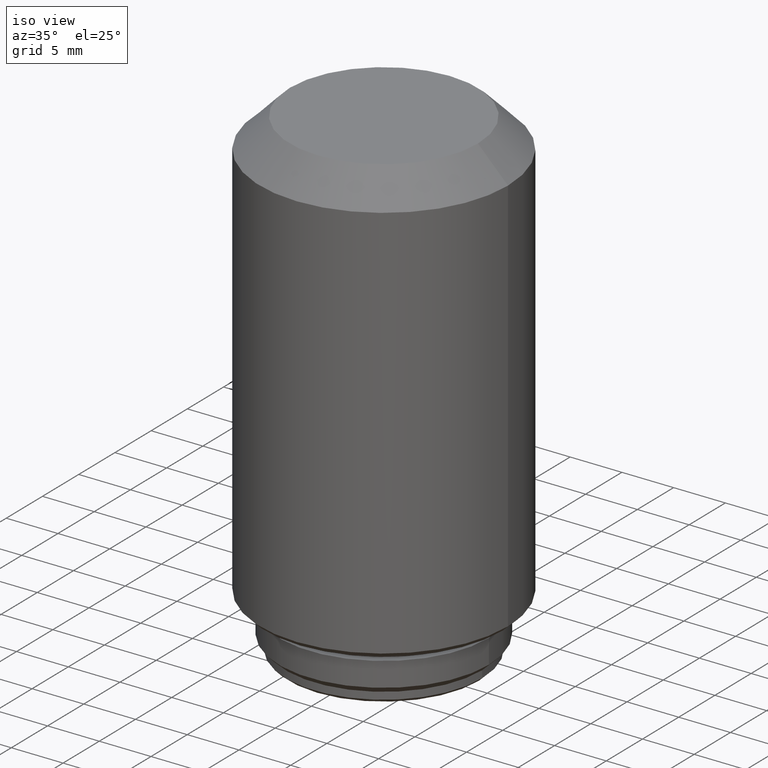
[diagram: clean part render]
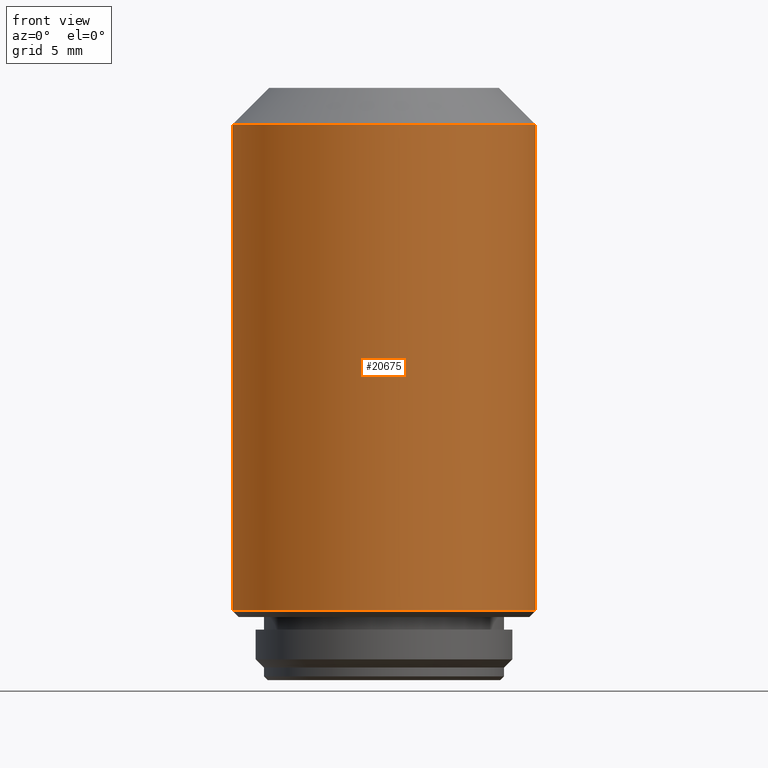
[diagram: tour spotlight — one face highlighted and labeled with its STEP entity id]
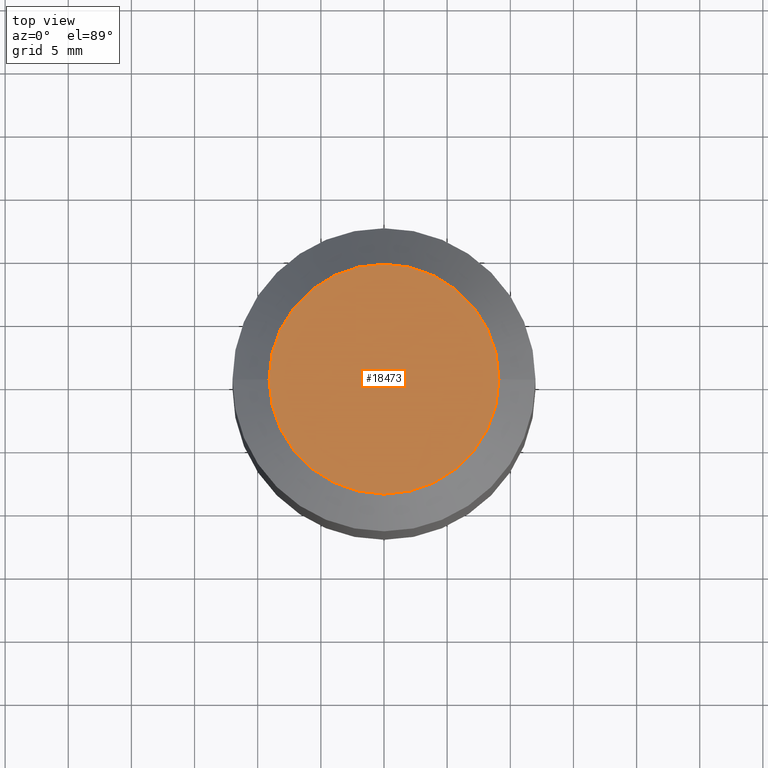
[diagram: tour spotlight — one face highlighted and labeled with its STEP entity id]
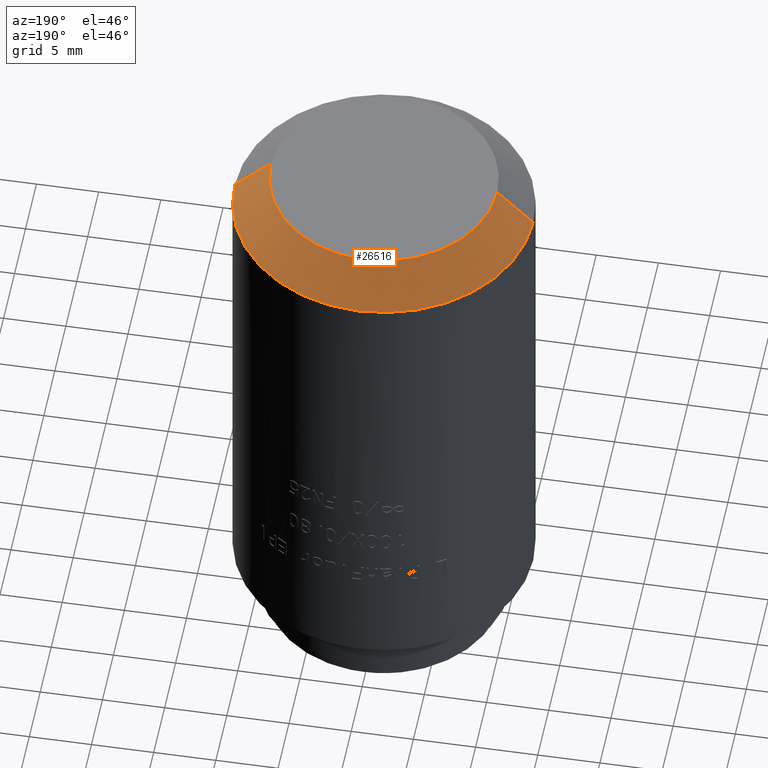
[diagram: tour spotlight — one face highlighted and labeled with its STEP entity id]
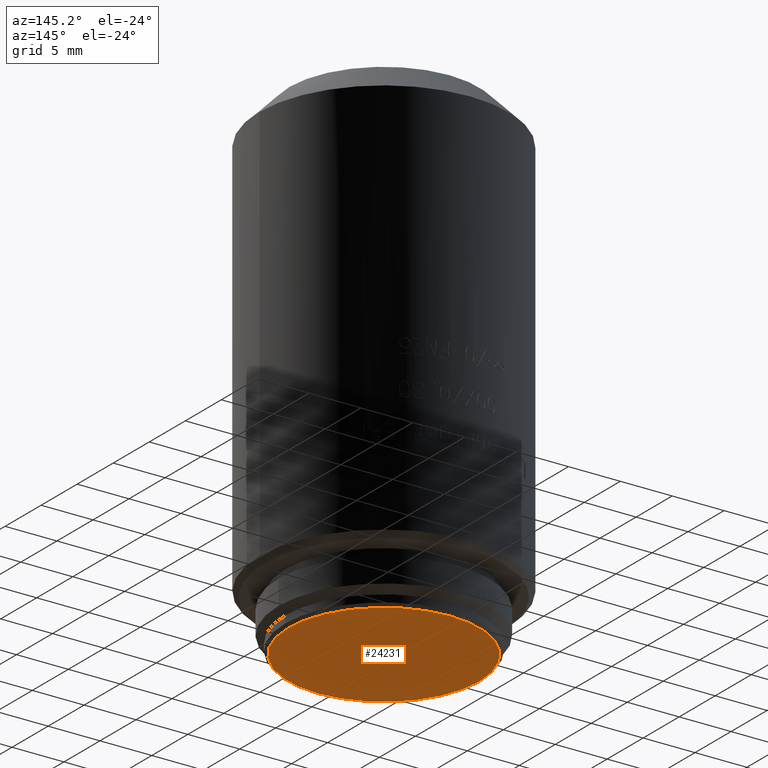
[diagram: tour spotlight — one face highlighted and labeled with its STEP entity id]
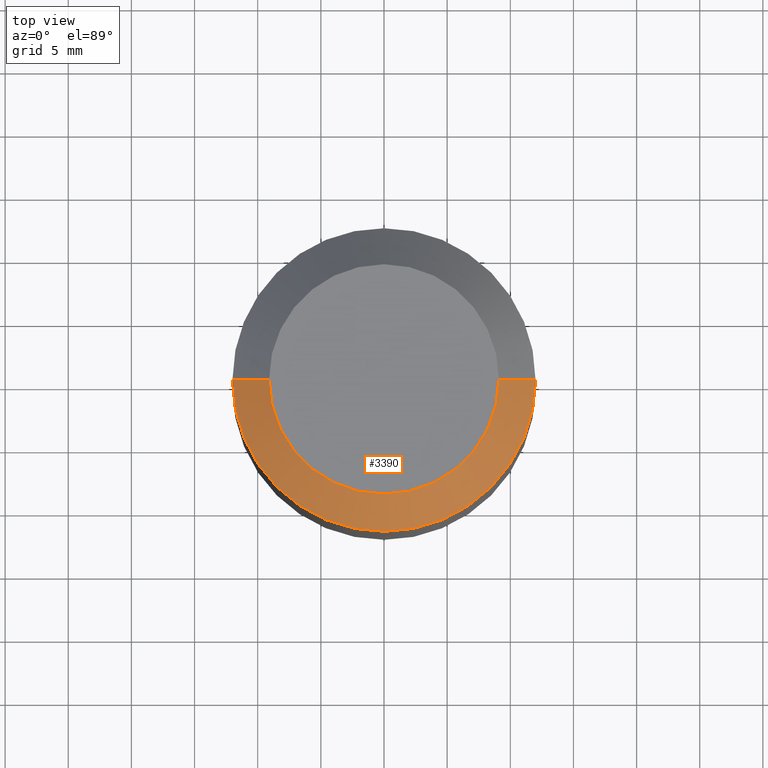
[diagram: tour spotlight — one face highlighted and labeled with its STEP entity id]
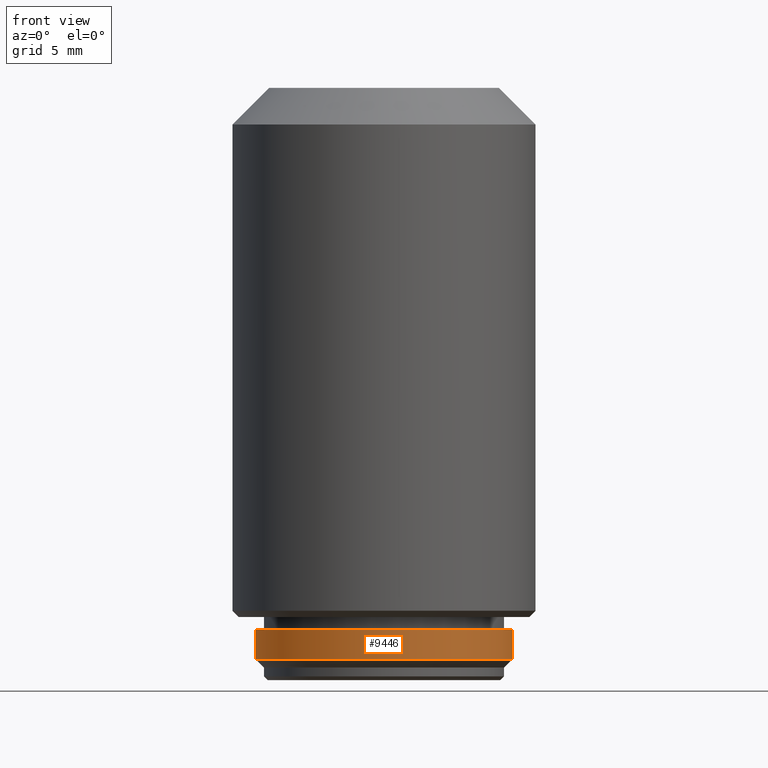
[diagram: tour spotlight — one face highlighted and labeled with its STEP entity id]
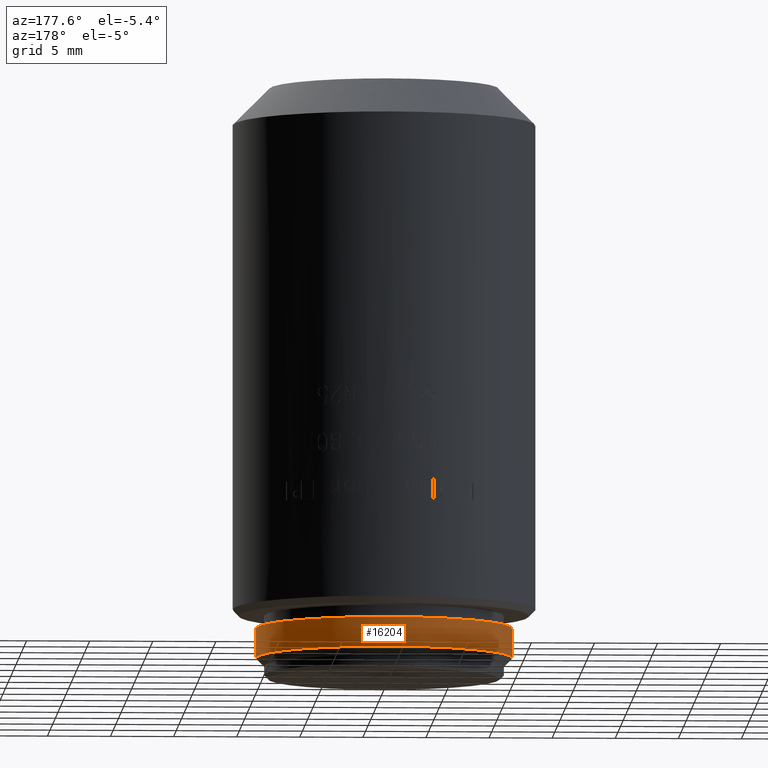
[diagram: tour spotlight — one face highlighted and labeled with its STEP entity id]
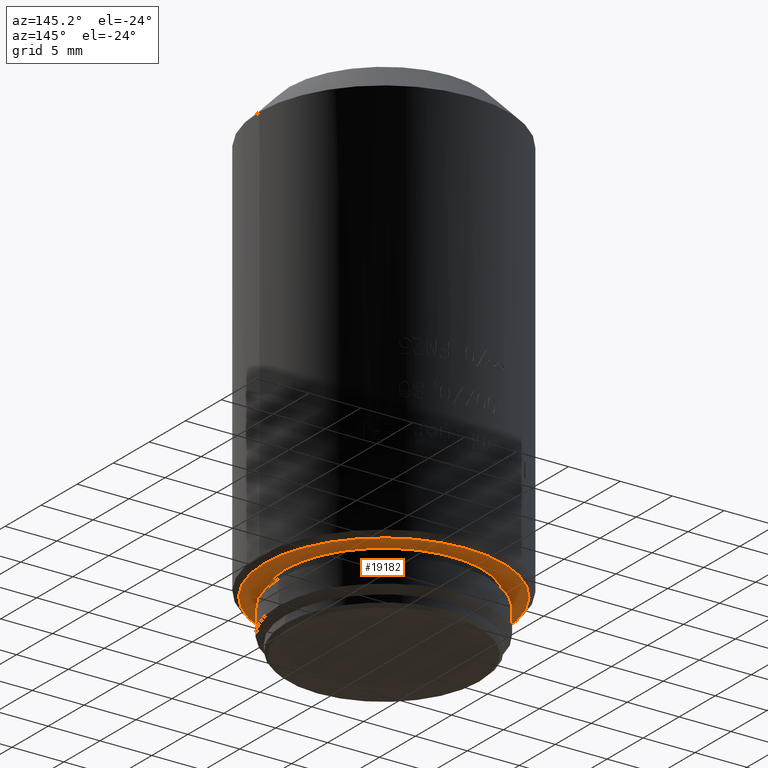
[diagram: tour spotlight — one face highlighted and labeled with its STEP entity id]
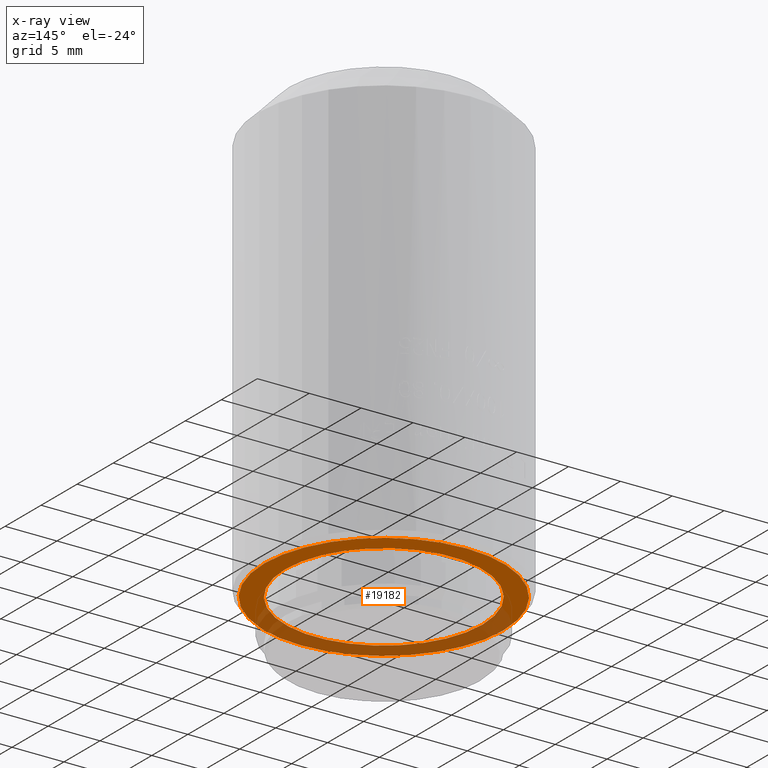
[diagram: x-ray of the same camera — body ghosted, this tour face saturated]
A machine part: a face-by-face anatomy tour. The part has 309 B-rep faces; the first image is the clean iso view, then the 8 largest visible faces are spotlighted one at a time (largest first), each with its STEP entity span.

Face 1 — front view, entity #20675. In plain terms, the highlighted cylindrical surface (partial cylindrical patch) has radius 12 mm, axis along (0, 0, -1).
Definition (entity closure, byte-faithful):
#188 = CYLINDRICAL_SURFACE ( 'NONE', #24854, 12.00000000000000000 ) ;
#848 = ORIENTED_EDGE ( 'NONE', *, *, #4191, .T. ) ;
#4181 = DIRECTION ( 'NONE',  ( 0.000000000000000000, 0.000000000000000000, -1.000000000000000000 ) ) ;
#4191 = EDGE_CURVE ( 'NONE', #9660, #15253, #15241, .T. ) ;
#5192 = VERTEX_POINT ( 'NONE', #12402 ) ;
#5768 = EDGE_CURVE ( 'NONE', #15253, #14628, #13104, .T. ) ;
#6119 = DIRECTION ( 'NONE',  ( 0.000000000000000000, 0.000000000000000000, 1.000000000000000000 ) ) ;
#6389 = DIRECTION ( 'NONE',  ( 0.000000000000000000, 0.000000000000000000, -1.000000000000000000 ) ) ;
#6608 = EDGE_CURVE ( 'NONE', #5192, #14628, #22871, .T. ) ;
#6789 = DIRECTION ( 'NONE',  ( -1.000000000000000000, 0.000000000000000000, 0.000000000000000000 ) ) ;
#8286 = ORIENTED_EDGE ( 'NONE', *, *, #5768, .T. ) ;
#8736 = CARTESIAN_POINT ( 'NONE',  ( 12.00000000000000000, 1.469576158976823947E-15, 46.89999999999999858 ) ) ;
#8797 = EDGE_CURVE ( 'NONE', #5192, #9660, #22298, .T. ) ;
#9660 = VERTEX_POINT ( 'NONE', #15630 ) ;
#10420 = FACE_OUTER_BOUND ( 'NONE', #18773, .T. ) ;
#10947 = VECTOR ( 'NONE', #21300, 1000.000000000000000 ) ;
#12302 = DIRECTION ( 'NONE',  ( -1.000000000000000000, 0.000000000000000000, 0.000000000000000000 ) ) ;
#12402 = CARTESIAN_POINT ( 'NONE',  ( 11.99999999999998757, 1.469576158976822369E-15, 44.00000000000000000 ) ) ;
#12846 = AXIS2_PLACEMENT_3D ( 'NONE', #18970, #19101, #12911 ) ;
#12911 = DIRECTION ( 'NONE',  ( 1.000000000000000000, 0.000000000000000000, 0.000000000000000000 ) ) ;
#13104 = CIRCLE ( 'NONE', #25946, 12.00000000000000000 ) ;
#14265 = CARTESIAN_POINT ( 'NONE',  ( -11.99999999999999822, 1.469576158976823750E-15, 5.500000000000000000 ) ) ;
#14628 = VERTEX_POINT ( 'NONE', #23132 ) ;
#15241 = LINE ( 'NONE', #19279, #10947 ) ;
#15253 = VERTEX_POINT ( 'NONE', #14265 ) ;
#15630 = CARTESIAN_POINT ( 'NONE',  ( -11.99999999999998757, 0.000000000000000000, 44.00000000000000000 ) ) ;
#16604 = CARTESIAN_POINT ( 'NONE',  ( 0.000000000000000000, 0.000000000000000000, 46.89999999999999858 ) ) ;
#17957 = CARTESIAN_POINT ( 'NONE',  ( 0.000000000000000000, 0.000000000000000000, 5.500000000000000000 ) ) ;
#18773 = EDGE_LOOP ( 'NONE', ( #19729, #19290, #848, #8286 ) ) ;
#18970 = CARTESIAN_POINT ( 'NONE',  ( 0.000000000000000000, 0.000000000000000000, 44.00000000000000000 ) ) ;
#19101 = DIRECTION ( 'NONE',  ( 0.000000000000000000, 0.000000000000000000, -1.000000000000000000 ) ) ;
#19279 = CARTESIAN_POINT ( 'NONE',  ( -12.00000000000000000, 0.000000000000000000, 46.89999999999999858 ) ) ;
#19290 = ORIENTED_EDGE ( 'NONE', *, *, #8797, .T. ) ;
#19729 = ORIENTED_EDGE ( 'NONE', *, *, #6608, .F. ) ;
#20675 = ADVANCED_FACE ( 'NONE', ( #10420 ), #188, .T. ) ;
#21300 = DIRECTION ( 'NONE',  ( 0.000000000000000000, 0.000000000000000000, -1.000000000000000000 ) ) ;
#22298 = CIRCLE ( 'NONE', #12846, 12.00000000000000000 ) ;
#22871 = LINE ( 'NONE', #8736, #23796 ) ;
#23132 = CARTESIAN_POINT ( 'NONE',  ( 11.99999999999999822, 0.000000000000000000, 5.500000000000000000 ) ) ;
#23796 = VECTOR ( 'NONE', #4181, 1000.000000000000000 ) ;
#24854 = AXIS2_PLACEMENT_3D ( 'NONE', #16604, #6389, #6789 ) ;
#25946 = AXIS2_PLACEMENT_3D ( 'NONE', #17957, #6119, #12302 ) ;

Face 2 — top view, entity #18473. In plain terms, the highlighted planar face has unit normal (0, 0, 1).
Definition (entity closure, byte-faithful):
#1606 = AXIS2_PLACEMENT_3D ( 'NONE', #26597, #14212, #20545 ) ;
#5035 = DIRECTION ( 'NONE',  ( 0.000000000000000000, 0.000000000000000000, 1.000000000000000000 ) ) ;
#7358 = VERTEX_POINT ( 'NONE', #10578 ) ;
#9824 = CIRCLE ( 'NONE', #13683, 9.099999999999999645 ) ;
#10578 = CARTESIAN_POINT ( 'NONE',  ( -9.099999999999999645, 0.000000000000000000, 46.89999999999999858 ) ) ;
#11191 = ORIENTED_EDGE ( 'NONE', *, *, #21459, .T. ) ;
#13505 = ORIENTED_EDGE ( 'NONE', *, *, #20147, .T. ) ;
#13683 = AXIS2_PLACEMENT_3D ( 'NONE', #22431, #20414, #14618 ) ;
#14212 = DIRECTION ( 'NONE',  ( 0.000000000000000000, 0.000000000000000000, 1.000000000000000000 ) ) ;
#14612 = FACE_OUTER_BOUND ( 'NONE', #15414, .T. ) ;
#14618 = DIRECTION ( 'NONE',  ( 1.000000000000000000, 0.000000000000000000, 0.000000000000000000 ) ) ;
#14930 = VERTEX_POINT ( 'NONE', #21355 ) ;
#15414 = EDGE_LOOP ( 'NONE', ( #13505, #11191 ) ) ;
#18380 = PLANE ( 'NONE',  #1606 ) ;
#18473 = ADVANCED_FACE ( 'NONE', ( #14612 ), #18380, .T. ) ;
#20147 = EDGE_CURVE ( 'NONE', #7358, #14930, #26559, .T. ) ;
#20414 = DIRECTION ( 'NONE',  ( 0.000000000000000000, 0.000000000000000000, 1.000000000000000000 ) ) ;
#20545 = DIRECTION ( 'NONE',  ( 1.000000000000000000, 0.000000000000000000, 0.000000000000000000 ) ) ;
#20551 = AXIS2_PLACEMENT_3D ( 'NONE', #21310, #5035, #21447 ) ;
#21310 = CARTESIAN_POINT ( 'NONE',  ( 0.000000000000000000, 0.000000000000000000, 46.89999999999999858 ) ) ;
#21355 = CARTESIAN_POINT ( 'NONE',  ( 9.099999999999999645, 1.292002373100456720E-15, 46.89999999999999858 ) ) ;
#21447 = DIRECTION ( 'NONE',  ( 1.000000000000000000, 0.000000000000000000, 0.000000000000000000 ) ) ;
#21459 = EDGE_CURVE ( 'NONE', #14930, #7358, #9824, .T. ) ;
#22431 = CARTESIAN_POINT ( 'NONE',  ( 0.000000000000000000, 0.000000000000000000, 46.89999999999999858 ) ) ;
#26559 = CIRCLE ( 'NONE', #20551, 9.099999999999999645 ) ;
#26597 = CARTESIAN_POINT ( 'NONE',  ( 0.000000000000000000, 0.000000000000000000, 46.89999999999999858 ) ) ;

Face 3 — auxiliary view, entity #26516. In plain terms, the highlighted conical surface has half-angle 45 deg.
Definition (entity closure, byte-faithful):
#83 = AXIS2_PLACEMENT_3D ( 'NONE', #22335, #17896, #16137 ) ;
#92 = CARTESIAN_POINT ( 'NONE',  ( 9.099999999999999645, 1.114428587224091465E-15, 46.89999999999999858 ) ) ;
#741 = DIRECTION ( 'NONE',  ( 0.000000000000000000, 0.000000000000000000, -1.000000000000000000 ) ) ;
#1484 = AXIS2_PLACEMENT_3D ( 'NONE', #19173, #741, #6036 ) ;
#3672 = EDGE_CURVE ( 'NONE', #9660, #5192, #16525, .T. ) ;
#4627 = ORIENTED_EDGE ( 'NONE', *, *, #7128, .F. ) ;
#5192 = VERTEX_POINT ( 'NONE', #12402 ) ;
#5784 = FACE_OUTER_BOUND ( 'NONE', #10645, .T. ) ;
#6036 = DIRECTION ( 'NONE',  ( 1.000000000000000000, 0.000000000000000000, 0.000000000000000000 ) ) ;
#7128 = EDGE_CURVE ( 'NONE', #7358, #9660, #13403, .T. ) ;
#7358 = VERTEX_POINT ( 'NONE', #10578 ) ;
#8129 = EDGE_CURVE ( 'NONE', #14930, #5192, #18521, .T. ) ;
#8634 = VECTOR ( 'NONE', #12870, 1000.000000000000114 ) ;
#9660 = VERTEX_POINT ( 'NONE', #15630 ) ;
#9707 = ORIENTED_EDGE ( 'NONE', *, *, #21459, .F. ) ;
#9824 = CIRCLE ( 'NONE', #13683, 9.099999999999999645 ) ;
#10047 = DIRECTION ( 'NONE',  ( 0.7071067811865460184, 8.659560562354913137E-17, -0.7071067811865489050 ) ) ;
#10578 = CARTESIAN_POINT ( 'NONE',  ( -9.099999999999999645, 0.000000000000000000, 46.89999999999999858 ) ) ;
#10645 = EDGE_LOOP ( 'NONE', ( #9707, #11848, #22903, #4627 ) ) ;
#11848 = ORIENTED_EDGE ( 'NONE', *, *, #8129, .T. ) ;
#12402 = CARTESIAN_POINT ( 'NONE',  ( 11.99999999999998757, 1.469576158976822369E-15, 44.00000000000000000 ) ) ;
#12870 = DIRECTION ( 'NONE',  ( -0.7071067811865460184, 0.000000000000000000, -0.7071067811865489050 ) ) ;
#13276 = CARTESIAN_POINT ( 'NONE',  ( -9.099999999999999645, 0.000000000000000000, 46.89999999999999858 ) ) ;
#13403 = LINE ( 'NONE', #13276, #8634 ) ;
#13683 = AXIS2_PLACEMENT_3D ( 'NONE', #22431, #20414, #14618 ) ;
#14618 = DIRECTION ( 'NONE',  ( 1.000000000000000000, 0.000000000000000000, 0.000000000000000000 ) ) ;
#14930 = VERTEX_POINT ( 'NONE', #21355 ) ;
#15630 = CARTESIAN_POINT ( 'NONE',  ( -11.99999999999998757, 0.000000000000000000, 44.00000000000000000 ) ) ;
#16137 = DIRECTION ( 'NONE',  ( -1.000000000000000000, 0.000000000000000000, 0.000000000000000000 ) ) ;
#16525 = CIRCLE ( 'NONE', #1484, 12.00000000000000000 ) ;
#17278 = CONICAL_SURFACE ( 'NONE', #83, 9.099999999999999645, 0.7853981633974461696 ) ;
#17896 = DIRECTION ( 'NONE',  ( 0.000000000000000000, 0.000000000000000000, -1.000000000000000000 ) ) ;
#18521 = LINE ( 'NONE', #92, #21022 ) ;
#19173 = CARTESIAN_POINT ( 'NONE',  ( 0.000000000000000000, 0.000000000000000000, 44.00000000000000000 ) ) ;
#20414 = DIRECTION ( 'NONE',  ( 0.000000000000000000, 0.000000000000000000, 1.000000000000000000 ) ) ;
#21022 = VECTOR ( 'NONE', #10047, 1000.000000000000114 ) ;
#21355 = CARTESIAN_POINT ( 'NONE',  ( 9.099999999999999645, 1.292002373100456720E-15, 46.89999999999999858 ) ) ;
#21459 = EDGE_CURVE ( 'NONE', #14930, #7358, #9824, .T. ) ;
#22335 = CARTESIAN_POINT ( 'NONE',  ( 0.000000000000000000, 0.000000000000000000, 46.89999999999999858 ) ) ;
#22431 = CARTESIAN_POINT ( 'NONE',  ( 0.000000000000000000, 0.000000000000000000, 46.89999999999999858 ) ) ;
#22903 = ORIENTED_EDGE ( 'NONE', *, *, #3672, .F. ) ;
#26516 = ADVANCED_FACE ( 'NONE', ( #5784 ), #17278, .T. ) ;

Face 4 — auxiliary view, entity #24231. In plain terms, the highlighted planar face has unit normal (0, 0, 1).
Definition (entity closure, byte-faithful):
#24 = DIRECTION ( 'NONE',  ( 1.000000000000000000, 0.000000000000000000, 0.000000000000000000 ) ) ;
#2150 = CARTESIAN_POINT ( 'NONE',  ( -9.199999999999999289, 1.145044757202775252E-15, 0.000000000000000000 ) ) ;
#4522 = EDGE_LOOP ( 'NONE', ( #17527, #17424 ) ) ;
#5225 = EDGE_CURVE ( 'NONE', #15130, #16281, #19116, .T. ) ;
#5272 = CARTESIAN_POINT ( 'NONE',  ( 0.000000000000000000, 0.000000000000000000, 0.000000000000000000 ) ) ;
#6750 = CIRCLE ( 'NONE', #21775, 9.199999999999999289 ) ;
#10957 = AXIS2_PLACEMENT_3D ( 'NONE', #17078, #15058, #24 ) ;
#11192 = DIRECTION ( 'NONE',  ( 1.000000000000000000, 0.000000000000000000, 0.000000000000000000 ) ) ;
#12380 = CARTESIAN_POINT ( 'NONE',  ( 9.199999999999999289, 0.000000000000000000, 0.000000000000000000 ) ) ;
#12614 = DIRECTION ( 'NONE',  ( 1.000000000000000000, 0.000000000000000000, 0.000000000000000000 ) ) ;
#13340 = FACE_OUTER_BOUND ( 'NONE', #4522, .T. ) ;
#14004 = AXIS2_PLACEMENT_3D ( 'NONE', #5272, #17640, #11192 ) ;
#15058 = DIRECTION ( 'NONE',  ( 0.000000000000000000, 0.000000000000000000, -1.000000000000000000 ) ) ;
#15130 = VERTEX_POINT ( 'NONE', #12380 ) ;
#16281 = VERTEX_POINT ( 'NONE', #2150 ) ;
#17078 = CARTESIAN_POINT ( 'NONE',  ( 0.000000000000000000, 0.000000000000000000, 0.000000000000000000 ) ) ;
#17424 = ORIENTED_EDGE ( 'NONE', *, *, #25116, .T. ) ;
#17527 = ORIENTED_EDGE ( 'NONE', *, *, #5225, .T. ) ;
#17640 = DIRECTION ( 'NONE',  ( 0.000000000000000000, 0.000000000000000000, 1.000000000000000000 ) ) ;
#19116 = CIRCLE ( 'NONE', #10957, 9.199999999999999289 ) ;
#20963 = CARTESIAN_POINT ( 'NONE',  ( 0.000000000000000000, 0.000000000000000000, 0.000000000000000000 ) ) ;
#21680 = PLANE ( 'NONE',  #14004 ) ;
#21775 = AXIS2_PLACEMENT_3D ( 'NONE', #20963, #22973, #12614 ) ;
#22973 = DIRECTION ( 'NONE',  ( 0.000000000000000000, 0.000000000000000000, -1.000000000000000000 ) ) ;
#24231 = ADVANCED_FACE ( 'NONE', ( #13340 ), #21680, .F. ) ;
#25116 = EDGE_CURVE ( 'NONE', #16281, #15130, #6750, .T. ) ;

Face 5 — top view, entity #3390. In plain terms, the highlighted conical surface has half-angle 45 deg.
Definition (entity closure, byte-faithful):
#92 = CARTESIAN_POINT ( 'NONE',  ( 9.099999999999999645, 1.114428587224091465E-15, 46.89999999999999858 ) ) ;
#1469 = ORIENTED_EDGE ( 'NONE', *, *, #8797, .F. ) ;
#3168 = ORIENTED_EDGE ( 'NONE', *, *, #20147, .F. ) ;
#3390 = ADVANCED_FACE ( 'NONE', ( #12522 ), #24258, .T. ) ;
#3668 = ORIENTED_EDGE ( 'NONE', *, *, #8129, .F. ) ;
#5035 = DIRECTION ( 'NONE',  ( 0.000000000000000000, 0.000000000000000000, 1.000000000000000000 ) ) ;
#5192 = VERTEX_POINT ( 'NONE', #12402 ) ;
#7128 = EDGE_CURVE ( 'NONE', #7358, #9660, #13403, .T. ) ;
#7358 = VERTEX_POINT ( 'NONE', #10578 ) ;
#8129 = EDGE_CURVE ( 'NONE', #14930, #5192, #18521, .T. ) ;
#8634 = VECTOR ( 'NONE', #12870, 1000.000000000000114 ) ;
#8797 = EDGE_CURVE ( 'NONE', #5192, #9660, #22298, .T. ) ;
#9074 = EDGE_LOOP ( 'NONE', ( #3668, #3168, #14994, #1469 ) ) ;
#9645 = AXIS2_PLACEMENT_3D ( 'NONE', #14667, #21001, #10501 ) ;
#9660 = VERTEX_POINT ( 'NONE', #15630 ) ;
#10047 = DIRECTION ( 'NONE',  ( 0.7071067811865460184, 8.659560562354913137E-17, -0.7071067811865489050 ) ) ;
#10501 = DIRECTION ( 'NONE',  ( -1.000000000000000000, 0.000000000000000000, 0.000000000000000000 ) ) ;
#10578 = CARTESIAN_POINT ( 'NONE',  ( -9.099999999999999645, 0.000000000000000000, 46.89999999999999858 ) ) ;
#12402 = CARTESIAN_POINT ( 'NONE',  ( 11.99999999999998757, 1.469576158976822369E-15, 44.00000000000000000 ) ) ;
#12522 = FACE_OUTER_BOUND ( 'NONE', #9074, .T. ) ;
#12846 = AXIS2_PLACEMENT_3D ( 'NONE', #18970, #19101, #12911 ) ;
#12870 = DIRECTION ( 'NONE',  ( -0.7071067811865460184, 0.000000000000000000, -0.7071067811865489050 ) ) ;
#12911 = DIRECTION ( 'NONE',  ( 1.000000000000000000, 0.000000000000000000, 0.000000000000000000 ) ) ;
#13276 = CARTESIAN_POINT ( 'NONE',  ( -9.099999999999999645, 0.000000000000000000, 46.89999999999999858 ) ) ;
#13403 = LINE ( 'NONE', #13276, #8634 ) ;
#14667 = CARTESIAN_POINT ( 'NONE',  ( 0.000000000000000000, 0.000000000000000000, 46.89999999999999858 ) ) ;
#14930 = VERTEX_POINT ( 'NONE', #21355 ) ;
#14994 = ORIENTED_EDGE ( 'NONE', *, *, #7128, .T. ) ;
#15630 = CARTESIAN_POINT ( 'NONE',  ( -11.99999999999998757, 0.000000000000000000, 44.00000000000000000 ) ) ;
#18521 = LINE ( 'NONE', #92, #21022 ) ;
#18970 = CARTESIAN_POINT ( 'NONE',  ( 0.000000000000000000, 0.000000000000000000, 44.00000000000000000 ) ) ;
#19101 = DIRECTION ( 'NONE',  ( 0.000000000000000000, 0.000000000000000000, -1.000000000000000000 ) ) ;
#20147 = EDGE_CURVE ( 'NONE', #7358, #14930, #26559, .T. ) ;
#20551 = AXIS2_PLACEMENT_3D ( 'NONE', #21310, #5035, #21447 ) ;
#21001 = DIRECTION ( 'NONE',  ( 0.000000000000000000, 0.000000000000000000, -1.000000000000000000 ) ) ;
#21022 = VECTOR ( 'NONE', #10047, 1000.000000000000114 ) ;
#21310 = CARTESIAN_POINT ( 'NONE',  ( 0.000000000000000000, 0.000000000000000000, 46.89999999999999858 ) ) ;
#21355 = CARTESIAN_POINT ( 'NONE',  ( 9.099999999999999645, 1.292002373100456720E-15, 46.89999999999999858 ) ) ;
#21447 = DIRECTION ( 'NONE',  ( 1.000000000000000000, 0.000000000000000000, 0.000000000000000000 ) ) ;
#22298 = CIRCLE ( 'NONE', #12846, 12.00000000000000000 ) ;
#24258 = CONICAL_SURFACE ( 'NONE', #9645, 9.099999999999999645, 0.7853981633974461696 ) ;
#26559 = CIRCLE ( 'NONE', #20551, 9.099999999999999645 ) ;

Face 6 — front view, entity #9446. In plain terms, the highlighted cylindrical surface (partial cylindrical patch) has radius 10.16 mm, axis along (0, 0, -1).
Definition (entity closure, byte-faithful):
#1402 = VERTEX_POINT ( 'NONE', #2707 ) ;
#1866 = EDGE_CURVE ( 'NONE', #1402, #21598, #18378, .T. ) ;
#2628 = CARTESIAN_POINT ( 'NONE',  ( 10.16000000000000014, 1.244241147933710864E-15, 5.000000000000000000 ) ) ;
#2707 = CARTESIAN_POINT ( 'NONE',  ( -10.16000000000000014, 0.000000000000000000, 4.000000000000000000 ) ) ;
#3576 = EDGE_CURVE ( 'NONE', #24187, #4125, #6803, .T. ) ;
#3727 = DIRECTION ( 'NONE',  ( 0.000000000000000000, 0.000000000000000000, 1.000000000000000000 ) ) ;
#4125 = VERTEX_POINT ( 'NONE', #19537 ) ;
#4628 = ORIENTED_EDGE ( 'NONE', *, *, #18360, .T. ) ;
#4822 = CARTESIAN_POINT ( 'NONE',  ( 0.000000000000000000, 0.000000000000000000, 4.000000000000000000 ) ) ;
#4936 = VECTOR ( 'NONE', #21196, 1000.000000000000000 ) ;
#6803 = LINE ( 'NONE', #2628, #4936 ) ;
#7836 = CARTESIAN_POINT ( 'NONE',  ( -10.16000000000000014, 1.244241147933710864E-15, 1.649999999999999911 ) ) ;
#8115 = CYLINDRICAL_SURFACE ( 'NONE', #16715, 10.16000000000000014 ) ;
#9446 = ADVANCED_FACE ( 'NONE', ( #22654 ), #8115, .T. ) ;
#10429 = EDGE_CURVE ( 'NONE', #1402, #24187, #16538, .T. ) ;
#10807 = VECTOR ( 'NONE', #18645, 1000.000000000000000 ) ;
#11447 = CARTESIAN_POINT ( 'NONE',  ( 10.16000000000000014, 1.244241147933710864E-15, 4.000000000000000000 ) ) ;
#11925 = DIRECTION ( 'NONE',  ( -1.000000000000000000, 0.000000000000000000, 0.000000000000000000 ) ) ;
#16295 = ORIENTED_EDGE ( 'NONE', *, *, #10429, .F. ) ;
#16320 = DIRECTION ( 'NONE',  ( 0.000000000000000000, 0.000000000000000000, -1.000000000000000000 ) ) ;
#16538 = CIRCLE ( 'NONE', #17817, 10.16000000000000014 ) ;
#16715 = AXIS2_PLACEMENT_3D ( 'NONE', #22911, #16320, #20763 ) ;
#16790 = DIRECTION ( 'NONE',  ( 0.000000000000000000, 0.000000000000000000, 1.000000000000000000 ) ) ;
#17817 = AXIS2_PLACEMENT_3D ( 'NONE', #4822, #16790, #19341 ) ;
#18360 = EDGE_CURVE ( 'NONE', #21598, #4125, #18792, .T. ) ;
#18378 = LINE ( 'NONE', #24845, #10807 ) ;
#18645 = DIRECTION ( 'NONE',  ( 0.000000000000000000, 0.000000000000000000, -1.000000000000000000 ) ) ;
#18792 = CIRCLE ( 'NONE', #24377, 10.16000000000000014 ) ;
#19341 = DIRECTION ( 'NONE',  ( -1.000000000000000000, 0.000000000000000000, 0.000000000000000000 ) ) ;
#19537 = CARTESIAN_POINT ( 'NONE',  ( 10.16000000000000014, 0.000000000000000000, 1.649999999999999911 ) ) ;
#20763 = DIRECTION ( 'NONE',  ( -1.000000000000000000, 0.000000000000000000, 0.000000000000000000 ) ) ;
#20838 = ORIENTED_EDGE ( 'NONE', *, *, #3576, .F. ) ;
#21196 = DIRECTION ( 'NONE',  ( 0.000000000000000000, 0.000000000000000000, -1.000000000000000000 ) ) ;
#21598 = VERTEX_POINT ( 'NONE', #7836 ) ;
#22151 = CARTESIAN_POINT ( 'NONE',  ( 0.000000000000000000, 0.000000000000000000, 1.649999999999999911 ) ) ;
#22654 = FACE_OUTER_BOUND ( 'NONE', #23829, .T. ) ;
#22911 = CARTESIAN_POINT ( 'NONE',  ( 0.000000000000000000, 0.000000000000000000, 5.000000000000000000 ) ) ;
#22920 = ORIENTED_EDGE ( 'NONE', *, *, #1866, .T. ) ;
#23829 = EDGE_LOOP ( 'NONE', ( #20838, #16295, #22920, #4628 ) ) ;
#24187 = VERTEX_POINT ( 'NONE', #11447 ) ;
#24377 = AXIS2_PLACEMENT_3D ( 'NONE', #22151, #3727, #11925 ) ;
#24845 = CARTESIAN_POINT ( 'NONE',  ( -10.16000000000000014, 0.000000000000000000, 5.000000000000000000 ) ) ;

Face 7 — auxiliary view, entity #16204. In plain terms, the highlighted cylindrical surface (partial cylindrical patch) has radius 10.16 mm, axis along (0, 0, -1).
Definition (entity closure, byte-faithful):
#1402 = VERTEX_POINT ( 'NONE', #2707 ) ;
#1531 = EDGE_CURVE ( 'NONE', #24187, #1402, #23753, .T. ) ;
#1866 = EDGE_CURVE ( 'NONE', #1402, #21598, #18378, .T. ) ;
#2628 = CARTESIAN_POINT ( 'NONE',  ( 10.16000000000000014, 1.244241147933710864E-15, 5.000000000000000000 ) ) ;
#2673 = EDGE_LOOP ( 'NONE', ( #3323, #10434, #16596, #15436 ) ) ;
#2707 = CARTESIAN_POINT ( 'NONE',  ( -10.16000000000000014, 0.000000000000000000, 4.000000000000000000 ) ) ;
#3067 = EDGE_CURVE ( 'NONE', #4125, #21598, #15247, .T. ) ;
#3323 = ORIENTED_EDGE ( 'NONE', *, *, #1531, .F. ) ;
#3576 = EDGE_CURVE ( 'NONE', #24187, #4125, #6803, .T. ) ;
#3717 = AXIS2_PLACEMENT_3D ( 'NONE', #6455, #14257, #12100 ) ;
#4125 = VERTEX_POINT ( 'NONE', #19537 ) ;
#4936 = VECTOR ( 'NONE', #21196, 1000.000000000000000 ) ;
#6455 = CARTESIAN_POINT ( 'NONE',  ( 0.000000000000000000, 0.000000000000000000, 5.000000000000000000 ) ) ;
#6803 = LINE ( 'NONE', #2628, #4936 ) ;
#7079 = AXIS2_PLACEMENT_3D ( 'NONE', #19405, #14971, #19535 ) ;
#7836 = CARTESIAN_POINT ( 'NONE',  ( -10.16000000000000014, 1.244241147933710864E-15, 1.649999999999999911 ) ) ;
#8468 = CYLINDRICAL_SURFACE ( 'NONE', #3717, 10.16000000000000014 ) ;
#10434 = ORIENTED_EDGE ( 'NONE', *, *, #3576, .T. ) ;
#10486 = FACE_OUTER_BOUND ( 'NONE', #2673, .T. ) ;
#10807 = VECTOR ( 'NONE', #18645, 1000.000000000000000 ) ;
#11447 = CARTESIAN_POINT ( 'NONE',  ( 10.16000000000000014, 1.244241147933710864E-15, 4.000000000000000000 ) ) ;
#12100 = DIRECTION ( 'NONE',  ( -1.000000000000000000, 0.000000000000000000, 0.000000000000000000 ) ) ;
#13022 = DIRECTION ( 'NONE',  ( 0.000000000000000000, 0.000000000000000000, 1.000000000000000000 ) ) ;
#14257 = DIRECTION ( 'NONE',  ( 0.000000000000000000, 0.000000000000000000, -1.000000000000000000 ) ) ;
#14971 = DIRECTION ( 'NONE',  ( 0.000000000000000000, 0.000000000000000000, 1.000000000000000000 ) ) ;
#15247 = CIRCLE ( 'NONE', #7079, 10.16000000000000014 ) ;
#15436 = ORIENTED_EDGE ( 'NONE', *, *, #1866, .F. ) ;
#16204 = ADVANCED_FACE ( 'NONE', ( #10486 ), #8468, .T. ) ;
#16596 = ORIENTED_EDGE ( 'NONE', *, *, #3067, .T. ) ;
#17201 = CARTESIAN_POINT ( 'NONE',  ( 0.000000000000000000, 0.000000000000000000, 4.000000000000000000 ) ) ;
#17457 = DIRECTION ( 'NONE',  ( -1.000000000000000000, 0.000000000000000000, 0.000000000000000000 ) ) ;
#18378 = LINE ( 'NONE', #24845, #10807 ) ;
#18645 = DIRECTION ( 'NONE',  ( 0.000000000000000000, 0.000000000000000000, -1.000000000000000000 ) ) ;
#19405 = CARTESIAN_POINT ( 'NONE',  ( 0.000000000000000000, 0.000000000000000000, 1.649999999999999911 ) ) ;
#19535 = DIRECTION ( 'NONE',  ( -1.000000000000000000, 0.000000000000000000, 0.000000000000000000 ) ) ;
#19537 = CARTESIAN_POINT ( 'NONE',  ( 10.16000000000000014, 0.000000000000000000, 1.649999999999999911 ) ) ;
#21196 = DIRECTION ( 'NONE',  ( 0.000000000000000000, 0.000000000000000000, -1.000000000000000000 ) ) ;
#21598 = VERTEX_POINT ( 'NONE', #7836 ) ;
#21606 = AXIS2_PLACEMENT_3D ( 'NONE', #17201, #13022, #17457 ) ;
#23753 = CIRCLE ( 'NONE', #21606, 10.16000000000000014 ) ;
#24187 = VERTEX_POINT ( 'NONE', #11447 ) ;
#24845 = CARTESIAN_POINT ( 'NONE',  ( -10.16000000000000014, 0.000000000000000000, 5.000000000000000000 ) ) ;

Face 8 — auxiliary view, entity #19182. An x-ray twin of the same camera follows (body ghosted, this face saturated) — the face is partly hidden behind the body. In plain terms, the highlighted planar face has unit normal (0, 0, -1).
Definition (entity closure, byte-faithful):
#14 = CARTESIAN_POINT ( 'NONE',  ( 11.50000000000000000, 0.000000000000000000, 5.000000000000000000 ) ) ;
#1124 = AXIS2_PLACEMENT_3D ( 'NONE', #5889, #12067, #22032 ) ;
#1268 = VERTEX_POINT ( 'NONE', #21958 ) ;
#2383 = DIRECTION ( 'NONE',  ( 0.000000000000000000, 0.000000000000000000, -1.000000000000000000 ) ) ;
#2431 = AXIS2_PLACEMENT_3D ( 'NONE', #6296, #2383, #10592 ) ;
#2511 = AXIS2_PLACEMENT_3D ( 'NONE', #17757, #25972, #21627 ) ;
#2838 = EDGE_LOOP ( 'NONE', ( #6779, #15167 ) ) ;
#3423 = CARTESIAN_POINT ( 'NONE',  ( -9.500000000000000000, 1.163414459189985485E-15, 5.000000000000000000 ) ) ;
#5889 = CARTESIAN_POINT ( 'NONE',  ( 0.000000000000000000, 0.000000000000000000, 5.000000000000000000 ) ) ;
#6091 = VERTEX_POINT ( 'NONE', #23854 ) ;
#6296 = CARTESIAN_POINT ( 'NONE',  ( 0.000000000000000000, 0.000000000000000000, 5.000000000000000000 ) ) ;
#6760 = CIRCLE ( 'NONE', #20511, 11.50000000000000000 ) ;
#6779 = ORIENTED_EDGE ( 'NONE', *, *, #16167, .T. ) ;
#8071 = DIRECTION ( 'NONE',  ( 0.000000000000000000, 0.000000000000000000, -1.000000000000000000 ) ) ;
#8889 = ORIENTED_EDGE ( 'NONE', *, *, #15576, .F. ) ;
#9397 = VERTEX_POINT ( 'NONE', #3423 ) ;
#10592 = DIRECTION ( 'NONE',  ( -1.000000000000000000, 0.000000000000000000, 0.000000000000000000 ) ) ;
#10593 = CIRCLE ( 'NONE', #2431, 9.500000000000000000 ) ;
#12067 = DIRECTION ( 'NONE',  ( 0.000000000000000000, 0.000000000000000000, -1.000000000000000000 ) ) ;
#12097 = PLANE ( 'NONE',  #2511 ) ;
#12576 = EDGE_CURVE ( 'NONE', #6091, #22919, #6760, .T. ) ;
#13180 = DIRECTION ( 'NONE',  ( 0.000000000000000000, 0.000000000000000000, -1.000000000000000000 ) ) ;
#13989 = EDGE_CURVE ( 'NONE', #1268, #9397, #14873, .T. ) ;
#14025 = EDGE_LOOP ( 'NONE', ( #20771, #8889 ) ) ;
#14119 = FACE_BOUND ( 'NONE', #14025, .T. ) ;
#14873 = CIRCLE ( 'NONE', #1124, 9.500000000000000000 ) ;
#15167 = ORIENTED_EDGE ( 'NONE', *, *, #12576, .T. ) ;
#15576 = EDGE_CURVE ( 'NONE', #9397, #1268, #10593, .T. ) ;
#16138 = DIRECTION ( 'NONE',  ( -1.000000000000000000, 0.000000000000000000, 0.000000000000000000 ) ) ;
#16167 = EDGE_CURVE ( 'NONE', #22919, #6091, #22190, .T. ) ;
#17757 = CARTESIAN_POINT ( 'NONE',  ( 0.000000000000000000, 0.000000000000000000, 5.000000000000000000 ) ) ;
#19182 = ADVANCED_FACE ( 'NONE', ( #14119, #22333 ), #12097, .T. ) ;
#19368 = DIRECTION ( 'NONE',  ( -1.000000000000000000, 0.000000000000000000, 0.000000000000000000 ) ) ;
#20511 = AXIS2_PLACEMENT_3D ( 'NONE', #21257, #13180, #19368 ) ;
#20589 = CARTESIAN_POINT ( 'NONE',  ( 0.000000000000000000, 0.000000000000000000, 5.000000000000000000 ) ) ;
#20771 = ORIENTED_EDGE ( 'NONE', *, *, #13989, .F. ) ;
#21257 = CARTESIAN_POINT ( 'NONE',  ( 0.000000000000000000, 0.000000000000000000, 5.000000000000000000 ) ) ;
#21627 = DIRECTION ( 'NONE',  ( 0.000000000000000000, -1.000000000000000000, 0.000000000000000000 ) ) ;
#21958 = CARTESIAN_POINT ( 'NONE',  ( 9.500000000000000000, 0.000000000000000000, 5.000000000000000000 ) ) ;
#22032 = DIRECTION ( 'NONE',  ( -1.000000000000000000, 0.000000000000000000, 0.000000000000000000 ) ) ;
#22190 = CIRCLE ( 'NONE', #26057, 11.50000000000000000 ) ;
#22333 = FACE_OUTER_BOUND ( 'NONE', #2838, .T. ) ;
#22919 = VERTEX_POINT ( 'NONE', #14 ) ;
#23854 = CARTESIAN_POINT ( 'NONE',  ( -11.50000000000000000, 1.438959988998139963E-15, 5.000000000000000000 ) ) ;
#25972 = DIRECTION ( 'NONE',  ( 0.000000000000000000, 0.000000000000000000, -1.000000000000000000 ) ) ;
#26057 = AXIS2_PLACEMENT_3D ( 'NONE', #20589, #8071, #16138 ) ;